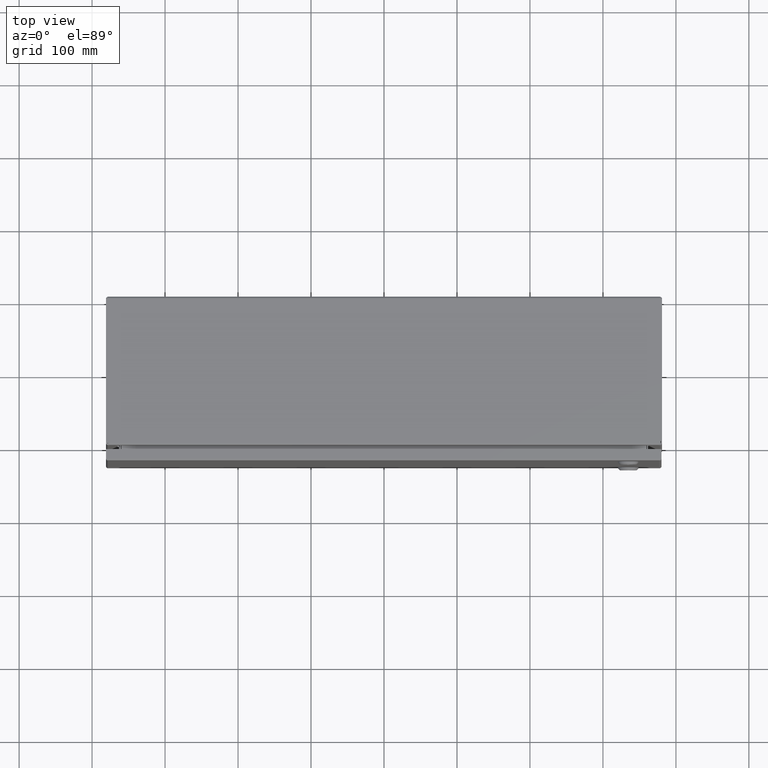
[diagram: clean part render]
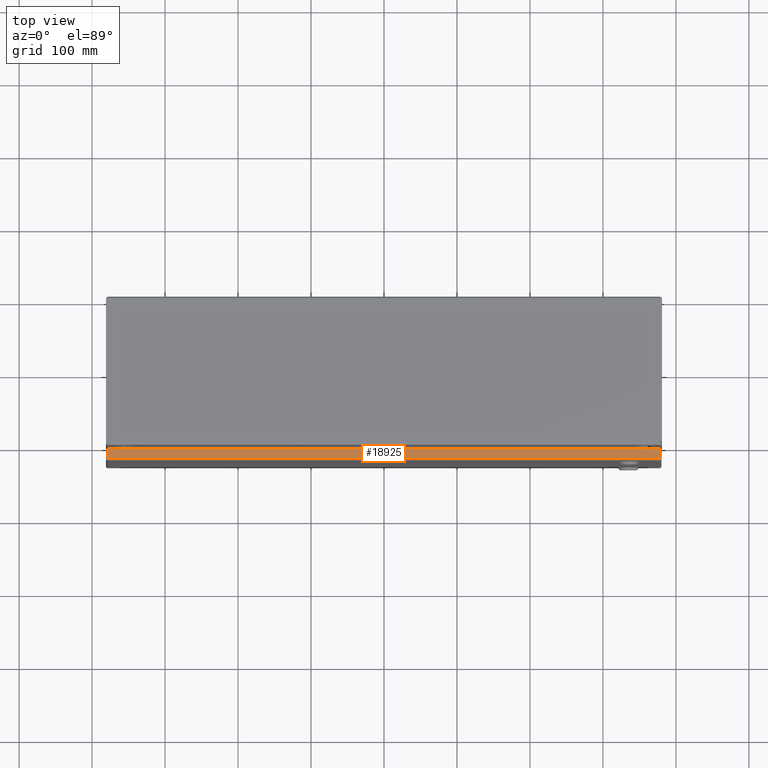
[diagram: same view with one face highlighted and labeled with its STEP entity id]
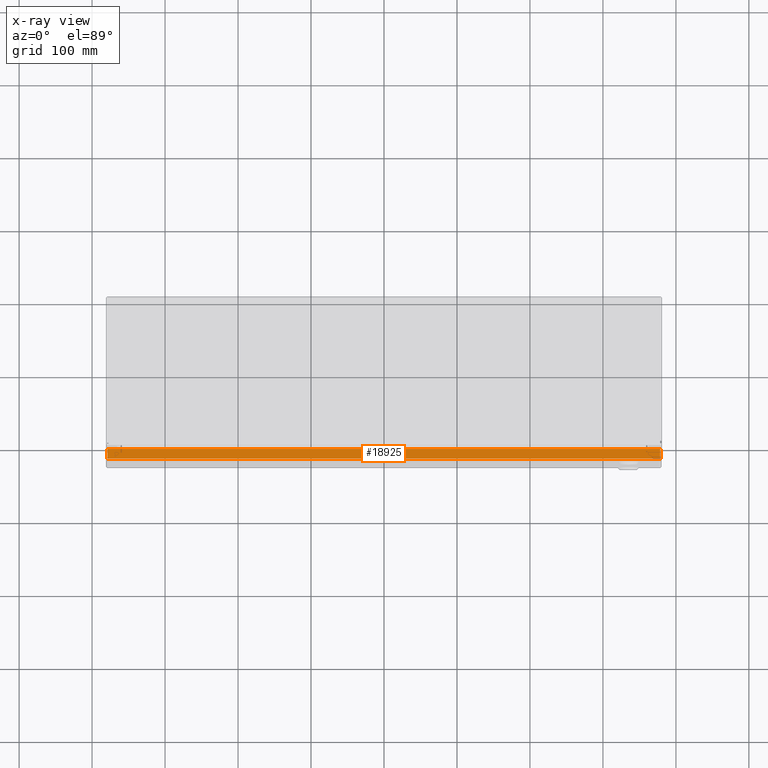
[diagram: x-ray of the same camera — body ghosted, the highlighted face saturated]
A machine part, top view. The second image highlights one B-rep face of the part: STEP entity #18925.
The next image is the same camera in x-ray: the body ghosted, the highlighted face saturated — about 0% of this face is hidden behind the body in this view.
In plain terms, the highlighted planar face has unit normal (0, 0, 1).
Its self-contained STEP definition (entity closure, byte-faithful):
#78 = ORIENTED_EDGE ( 'NONE', *, *, #6228, .T. ) ;
#1084 = EDGE_CURVE ( 'NONE', #24491, #13820, #3602, .T. ) ;
#1604 = AXIS2_PLACEMENT_3D ( 'NONE', #24157, #3907, #8007 ) ;
#1656 = FACE_OUTER_BOUND ( 'NONE', #14394, .T. ) ;
#2708 = EDGE_CURVE ( 'NONE', #3041, #24910, #22978, .T. ) ;
#3041 = VERTEX_POINT ( 'NONE', #15140 ) ;
#3602 = LINE ( 'NONE', #7842, #4677 ) ;
#3907 = DIRECTION ( 'NONE',  ( 0.0000000000000000000, 6.123031769111889989E-17, 1.000000000000000000 ) ) ;
#4677 = VECTOR ( 'NONE', #17657, 39.37007874015748143 ) ;
#6228 = EDGE_CURVE ( 'NONE', #13820, #24910, #9845, .T. ) ;
#6719 = DIRECTION ( 'NONE',  ( 0.0000000000000000000, 1.000000000000000000, -0.0000000000000000000 ) ) ;
#7842 = CARTESIAN_POINT ( 'NONE',  ( 14.86499999999999133, -8.212000000000001521, 11.98399999999999821 ) ) ;
#7975 = CARTESIAN_POINT ( 'NONE',  ( -14.92392125984253148, -8.774500000000001521, 11.98399999999999821 ) ) ;
#8007 = DIRECTION ( 'NONE',  ( 0.0000000000000000000, -1.000000000000000000, 6.123031769111889989E-17 ) ) ;
#8050 = VECTOR ( 'NONE', #10929, 39.37007874015748143 ) ;
#8119 = ORIENTED_EDGE ( 'NONE', *, *, #24868, .T. ) ;
#8322 = CARTESIAN_POINT ( 'NONE',  ( 14.90092125984251226, -8.774500000000001521, 11.98399999999999821 ) ) ;
#8837 = CARTESIAN_POINT ( 'NONE',  ( -14.92392125984253148, -8.728999999999993875, 11.98399999999999821 ) ) ;
#8942 = CARTESIAN_POINT ( 'NONE',  ( -14.88800000000001056, -8.728999999999986770, 11.98399999999999821 ) ) ;
#9845 = LINE ( 'NONE', #7975, #16131 ) ;
#9965 = VECTOR ( 'NONE', #6719, 39.37007874015748143 ) ;
#10929 = DIRECTION ( 'NONE',  ( -1.000000000000000000, -3.749151804555340178E-33, -6.123031769111889989E-17 ) ) ;
#11649 = CARTESIAN_POINT ( 'NONE',  ( 14.90092125984251048, -8.212000000000001521, 11.98399999999999821 ) ) ;
#13750 = ORIENTED_EDGE ( 'NONE', *, *, #2708, .F. ) ;
#13820 = VERTEX_POINT ( 'NONE', #18286 ) ;
#14394 = EDGE_LOOP ( 'NONE', ( #13750, #8119, #21186, #78 ) ) ;
#15140 = CARTESIAN_POINT ( 'NONE',  ( 14.90092125984251226, -8.728999999999986770, 11.98399999999999821 ) ) ;
#16131 = VECTOR ( 'NONE', #25737, 39.37007874015748143 ) ;
#17657 = DIRECTION ( 'NONE',  ( -1.000000000000000000, -0.0000000000000000000, -0.0000000000000000000 ) ) ;
#17830 = PLANE ( 'NONE',  #1604 ) ;
#18286 = CARTESIAN_POINT ( 'NONE',  ( -14.92392125984252971, -8.212000000000001521, 11.98399999999999821 ) ) ;
#18925 = ADVANCED_FACE ( 'NONE', ( #1656 ), #17830, .T. ) ;
#20631 = LINE ( 'NONE', #8322, #9965 ) ;
#21186 = ORIENTED_EDGE ( 'NONE', *, *, #1084, .T. ) ;
#22978 = LINE ( 'NONE', #8942, #8050 ) ;
#24157 = CARTESIAN_POINT ( 'NONE',  ( -14.88800000000001056, -8.774500000000001521, 11.98399999999999821 ) ) ;
#24491 = VERTEX_POINT ( 'NONE', #11649 ) ;
#24868 = EDGE_CURVE ( 'NONE', #3041, #24491, #20631, .T. ) ;
#24910 = VERTEX_POINT ( 'NONE', #8837 ) ;
#25737 = DIRECTION ( 'NONE',  ( 0.0000000000000000000, -1.000000000000000000, -0.0000000000000000000 ) ) ;